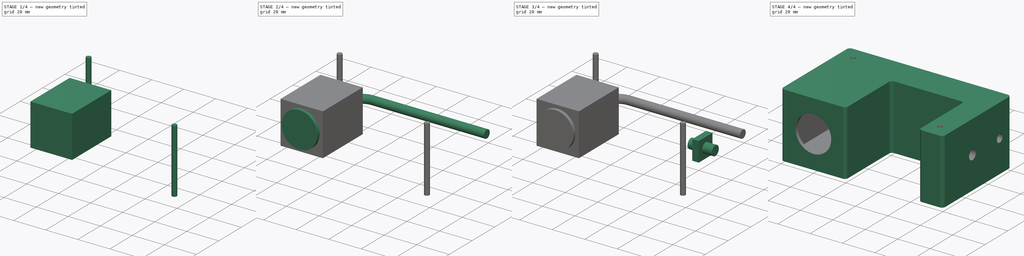
[diagram: build sequence overview — one tinted view per stage of 4, left to right]
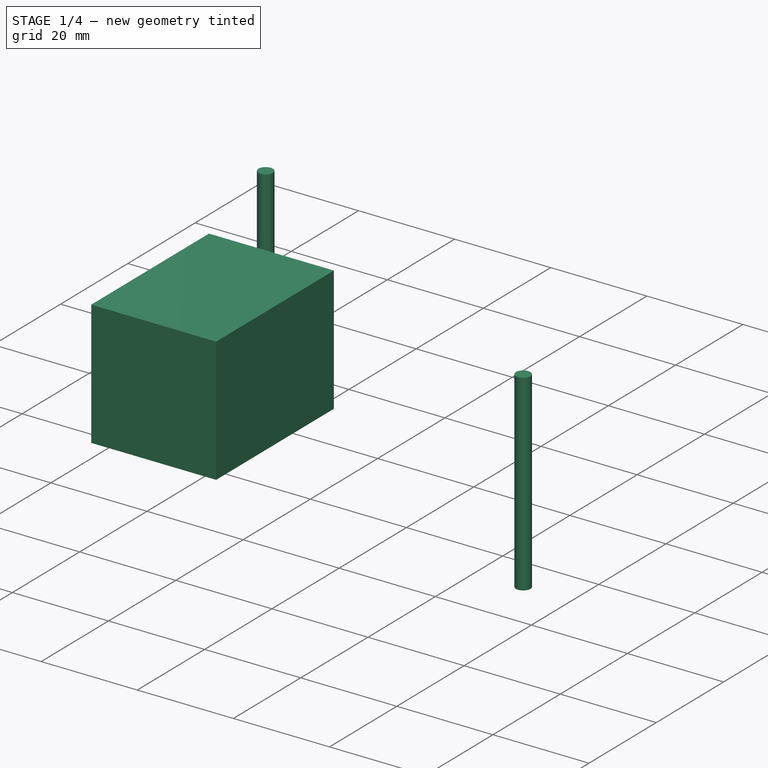
[diagram: stage 1 of 4 — iso view after this stage's code; geometry added in this stage tinted green]
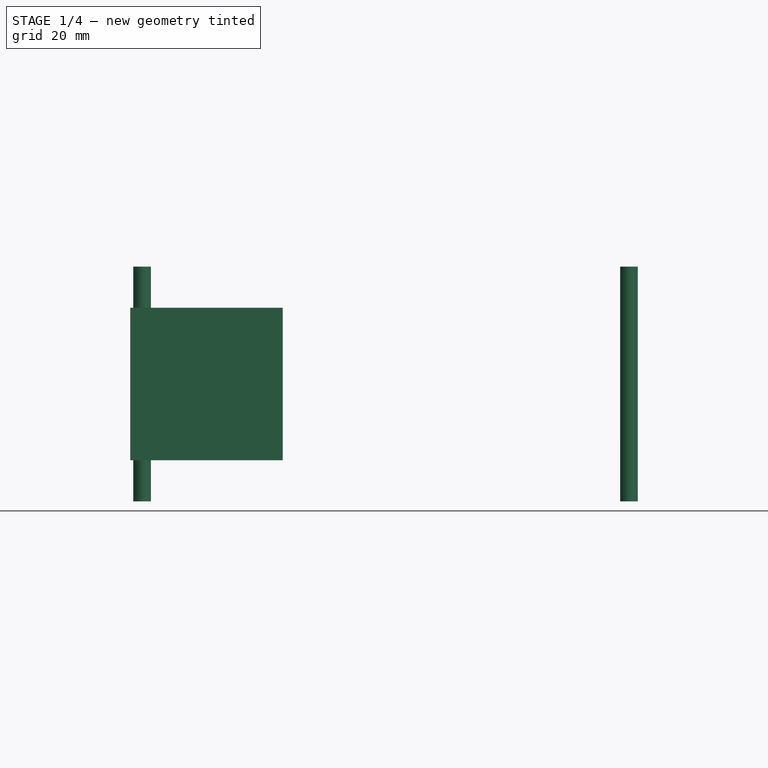
[diagram: stage 1 of 4 — front view after this stage's code; geometry added in this stage tinted green]
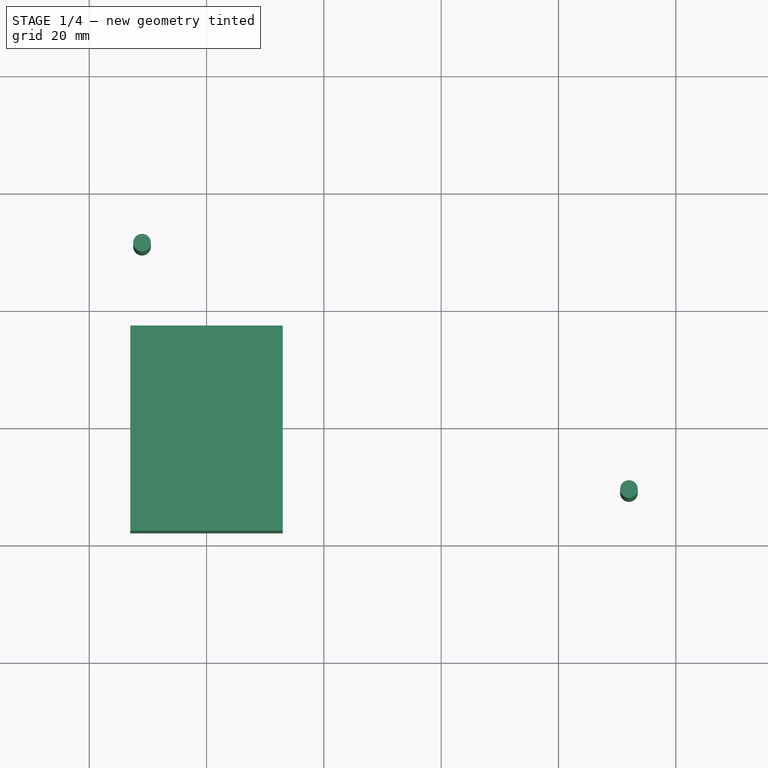
[diagram: stage 1 of 4 — top view after this stage's code; geometry added in this stage tinted green]
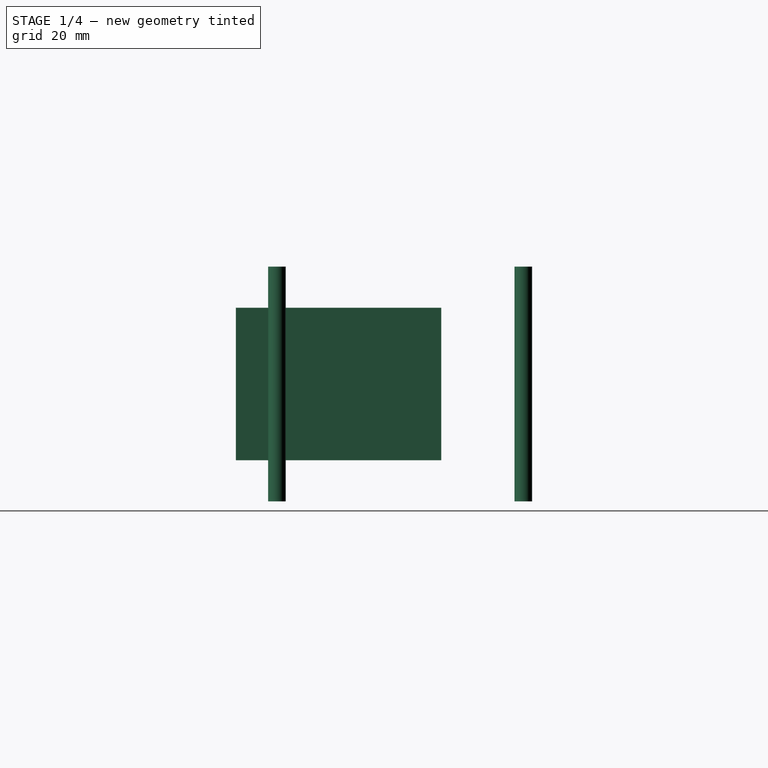
[diagram: stage 1 of 4 — right view after this stage's code; geometry added in this stage tinted green]
FCSTD DOCUMENT  (FreeCAD 0.20R29177 +426 (Git))
Label: UltrasonicSensorCase
License: All rights reserved
LicenseURL: http://en.wikipedia.org/wiki/All_rights_reserved
objects: Part::Cylinder×4, Part::MultiFuse×4, Sketcher::SketchObject×3, Part::Box×2, PartDesign::Pad×1, PartDesign::Body×1, Part::Sweep×1, Part::Cut×1, Part::Fillet×1
note: 19 computed .brp shape members not serialized (recipe doc carries the construction recipe); baked Part::Feature solids carry a one-line shape summary decoded from their .brp

FEATURE [Part::Cylinder] Cylinder001  label="screw001"
  Angle = 360
  AttacherType = Attacher::AttachEngine3D
  FirstAngle = 0
  Height = 40
  Placement = pos=(9,51,0) rot=(0,0,1;0rad)
  Radius = 1.5
  SecondAngle = 0
FEATURE [Part::Cylinder] Cylinder002  label="screw002"
  Angle = 360
  AttacherType = Attacher::AttachEngine3D
  FirstAngle = 0
  Height = 40
  Placement = pos=(92,9,0) rot=(0,0,1;0rad)
  Radius = 1.5
  SecondAngle = 0
FEATURE [Part::Box] Box001  label="sensorBody"
  AttacherType = Attacher::AttachEngine3D
  Height = 26
  Length = 26
  Placement = pos=(7,2,7) rot=(0,0,1;0rad)
  Width = 35
FEATURE [Part::MultiFuse] Fusion002  label="screws"
  Shapes = -> [Cylinder002,Cylinder001]
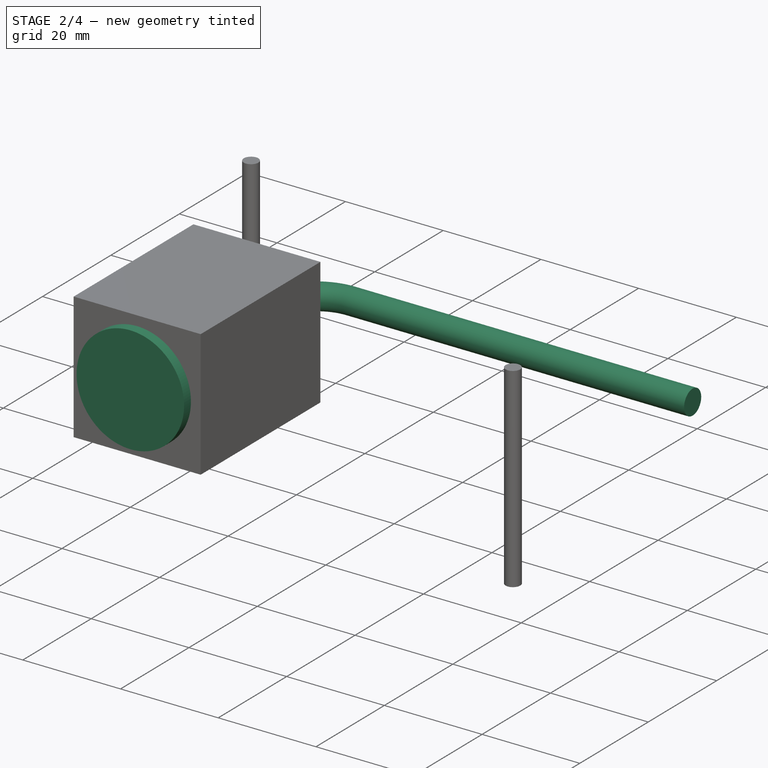
[diagram: stage 2 of 4 — iso view after this stage's code; geometry added in this stage tinted green]
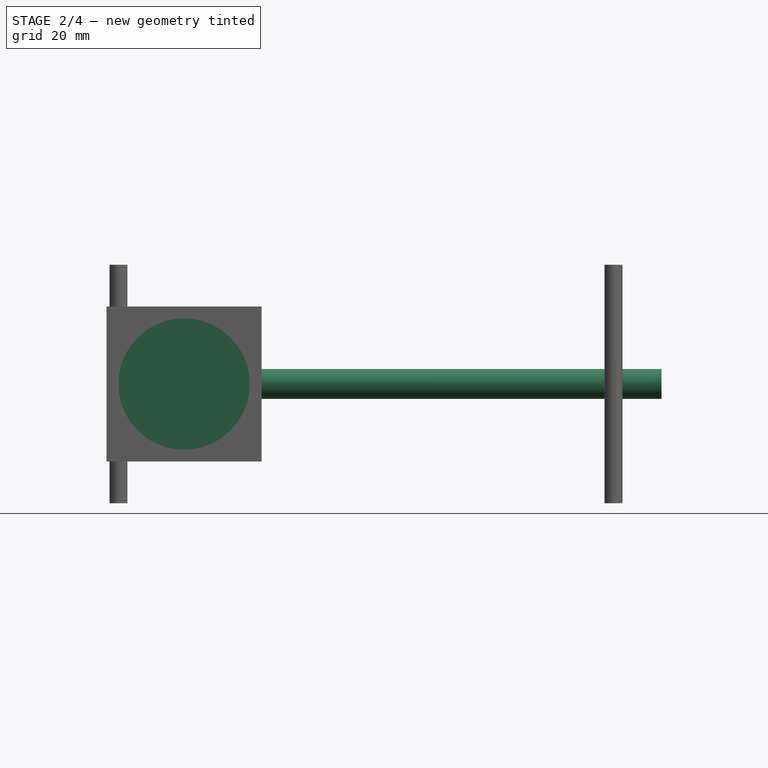
[diagram: stage 2 of 4 — front view after this stage's code; geometry added in this stage tinted green]
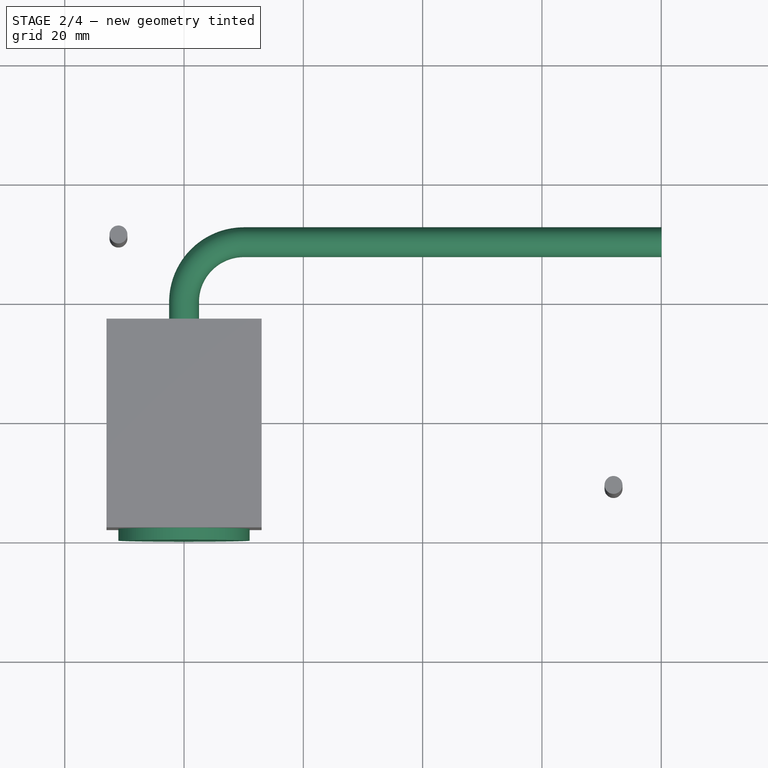
[diagram: stage 2 of 4 — top view after this stage's code; geometry added in this stage tinted green]
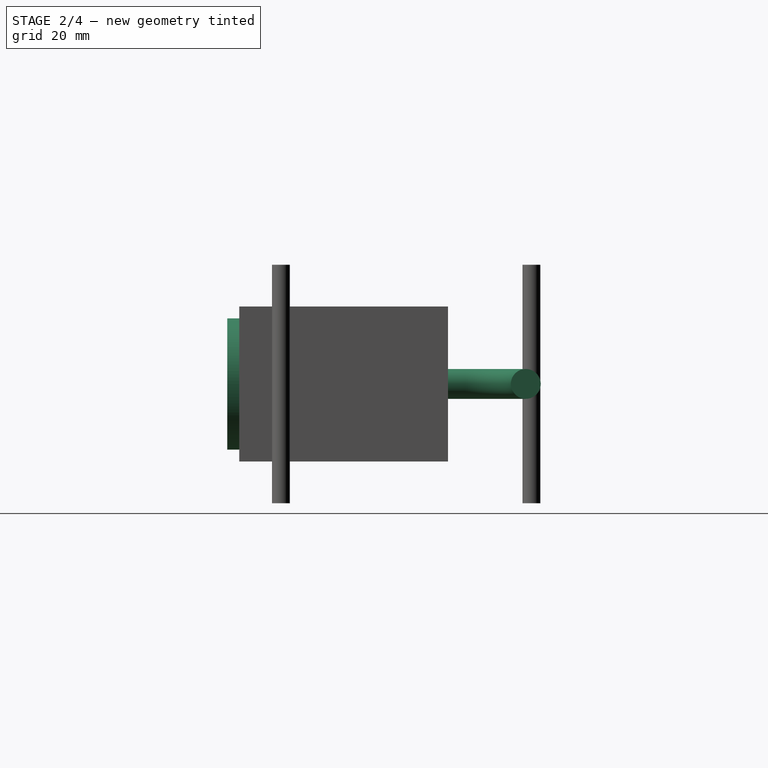
[diagram: stage 2 of 4 — right view after this stage's code; geometry added in this stage tinted green]
FEATURE [PartDesign::Body] Body  label="baseModel"
  Group = -> [Sketch,Pad]
  Origin = -> Origin
  Tip = -> Pad
FEATURE [Part::Cylinder] Cylinder  label="sensorCylinder"
  Angle = 360
  AttacherType = Attacher::AttachEngine3D
  FirstAngle = 0
  Height = 2
  Placement = pos=(20,2,20) rot=(1,0,0;1.5708rad)
  Radius = 11
  SecondAngle = 0
FEATURE [Sketcher::SketchObject] Sketch005  label="shapeCable"
  FullyConstrained = true
  MapMode = 5
  Placement = pos=(0,0,0) rot=(1,0,0;1.5708rad)
  sketch-geometry (1):
    g0: Circle CenterX=20 CenterY=0.016 CenterZ=0 NormalX=0 NormalY=0 NormalZ=1 AngleXU=0 Radius=2.5
  constraints (3):
    c: Diameter(g0) = 5
    c: DistanceX(g0) = 20
    c: DistanceY(g0) = 0.016
FEATURE [Sketcher::SketchObject] Sketch006  label="cableTrayectory"
  FullyConstrained = true
  MapMode = 5
  sketch-geometry (3):
    g0: LineSegment StartX=20.0469 StartY=-0.001316 StartZ=0 EndX=20.0469 EndY=39.9987 EndZ=0
    g1: LineSegment StartX=30.0469 StartY=49.9987 StartZ=0 EndX=100.047 EndY=49.9987 EndZ=0
    g2: ArcOfCircle CenterX=30.0469 CenterY=39.9987 CenterZ=0 NormalX=0 NormalY=0 NormalZ=1 AngleXU=0 Radius=10 StartAngle=1.5708 EndAngle=3.14159
  constraints (9):
    c: Vertical(g0)
    c: Horizontal(g1)
    c: Tangent(g0,g2) = 1.5708
    c: Tangent(g1,g2) = 1.5708
    c: Distance(g0,g2) = 10
    c: DistanceY(g0,g0) = 40
    c: DistanceX(g1,g1) = 70
    c: DistanceX(g0) = 20.0469
    c: DistanceY(g0) = -0.001316
FEATURE [Part::Sweep] Sweep  label="sensorCable"
  Frenet = false
  Placement = pos=(0,0,20) rot=(0,0,1;0rad)
  Sections = -> [Sketch005]
  Solid = true
  Spine = -> Sketch006 [Edge1,Edge2,Edge3]
  Transition = 1
FEATURE [Part::MultiFuse] Fusion001  label="sensor"
  Shapes = -> [Box001,Sweep,Cylinder]
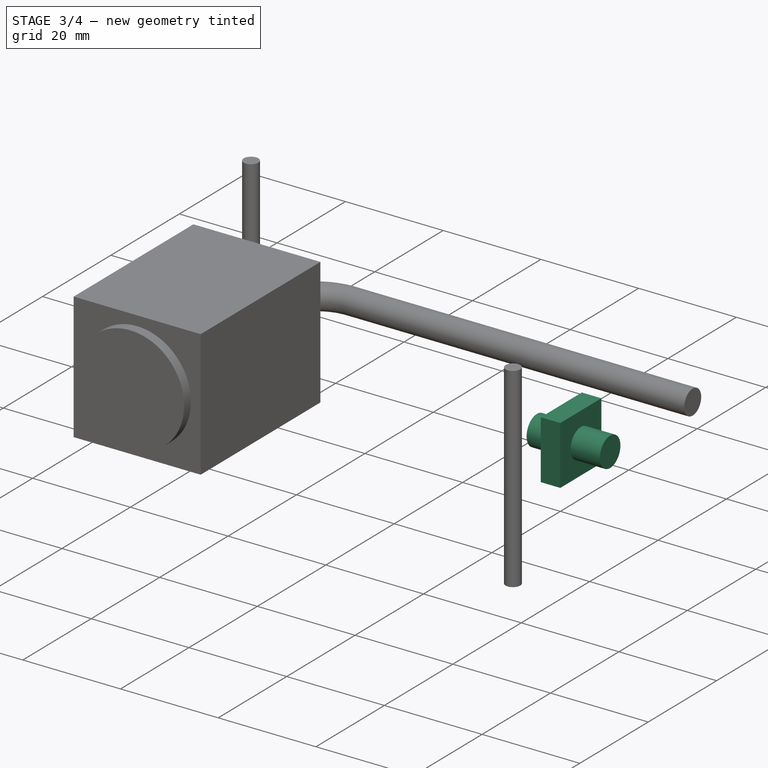
[diagram: stage 3 of 4 — iso view after this stage's code; geometry added in this stage tinted green]
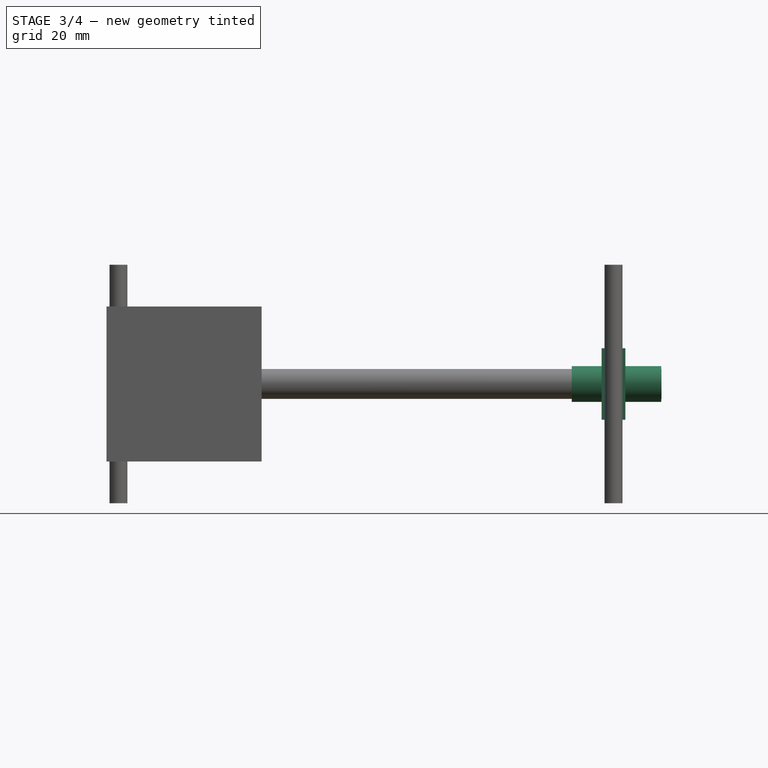
[diagram: stage 3 of 4 — front view after this stage's code; geometry added in this stage tinted green]
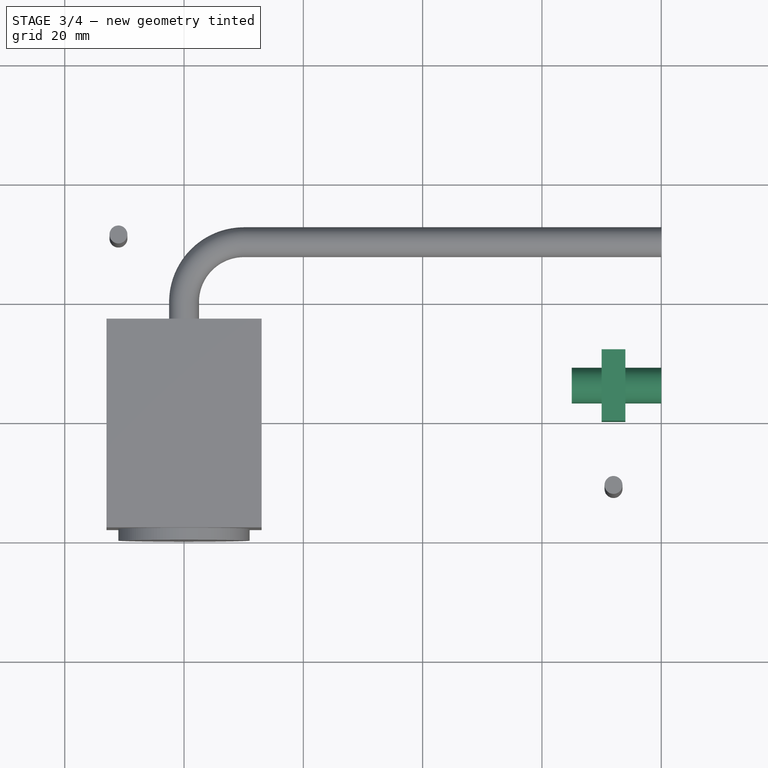
[diagram: stage 3 of 4 — top view after this stage's code; geometry added in this stage tinted green]
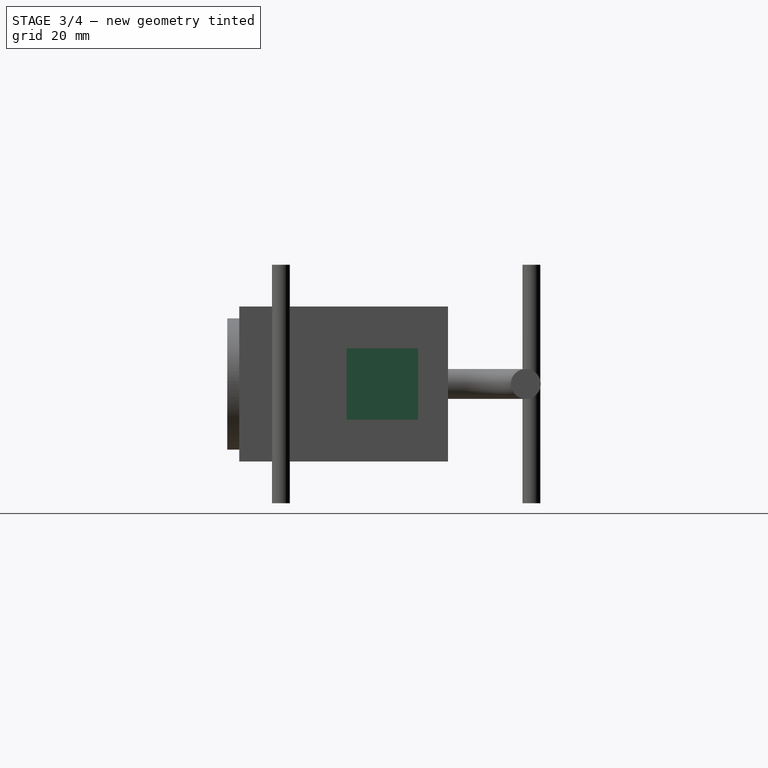
[diagram: stage 3 of 4 — right view after this stage's code; geometry added in this stage tinted green]
FEATURE [Part::Box] Box  label="nutClamp"
  AttacherType = Attacher::AttachEngine3D
  Height = 12
  Length = 4
  Placement = pos=(90,20,14) rot=(0,0,1;0rad)
  Width = 12
FEATURE [Part::Cylinder] Cylinder003  label="screwClamp"
  Angle = 360
  AttacherType = Attacher::AttachEngine3D
  FirstAngle = 0
  Height = 15
  Placement = pos=(85,26,20) rot=(0,1,0;1.5708rad)
  Radius = 3
  SecondAngle = 0
FEATURE [Part::MultiFuse] Fusion  label="clamp"
  Shapes = -> [Cylinder003,Box]
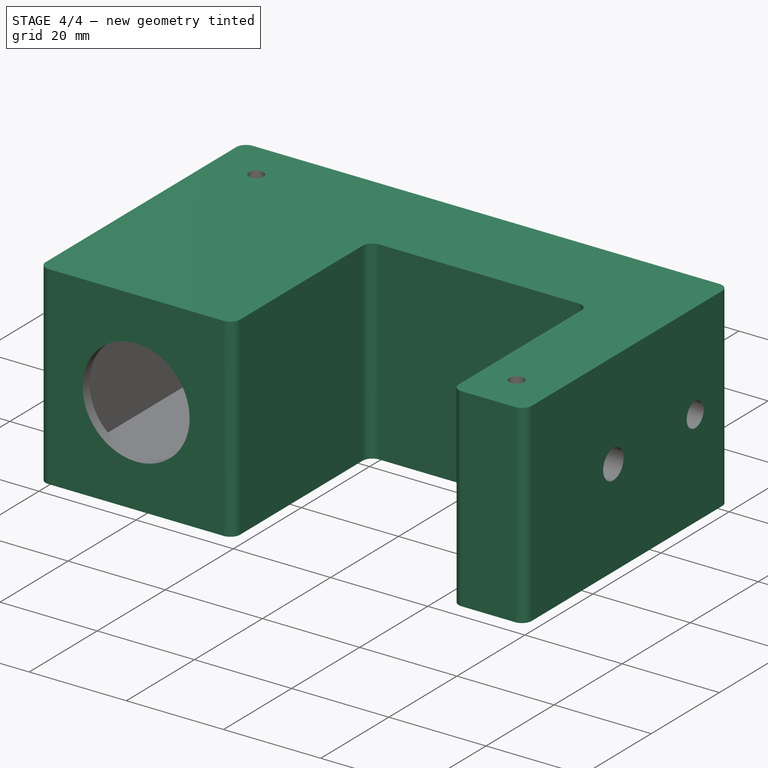
[diagram: stage 4 of 4 — iso view after this stage's code; geometry added in this stage tinted green]
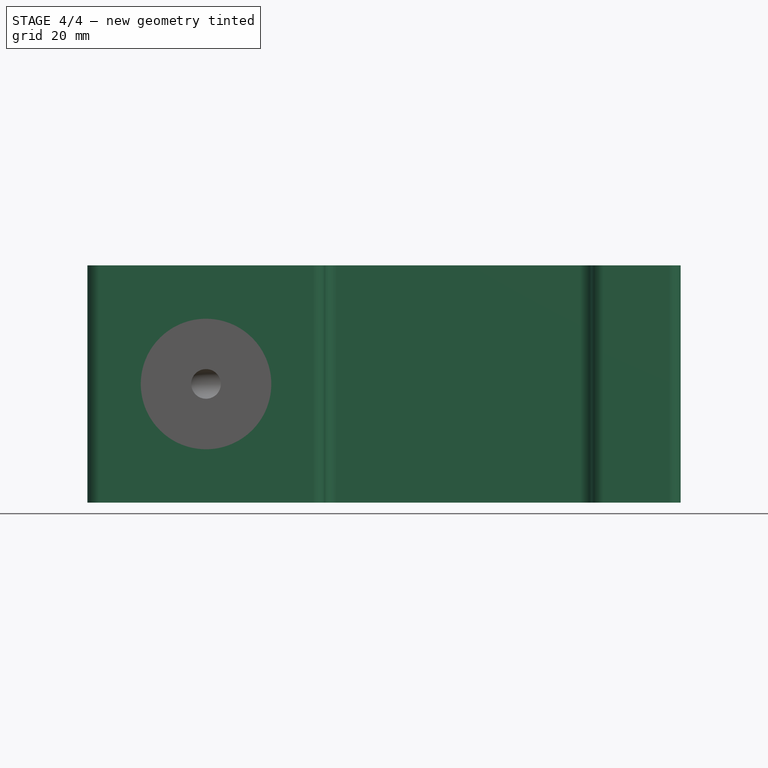
[diagram: stage 4 of 4 — front view after this stage's code; geometry added in this stage tinted green]
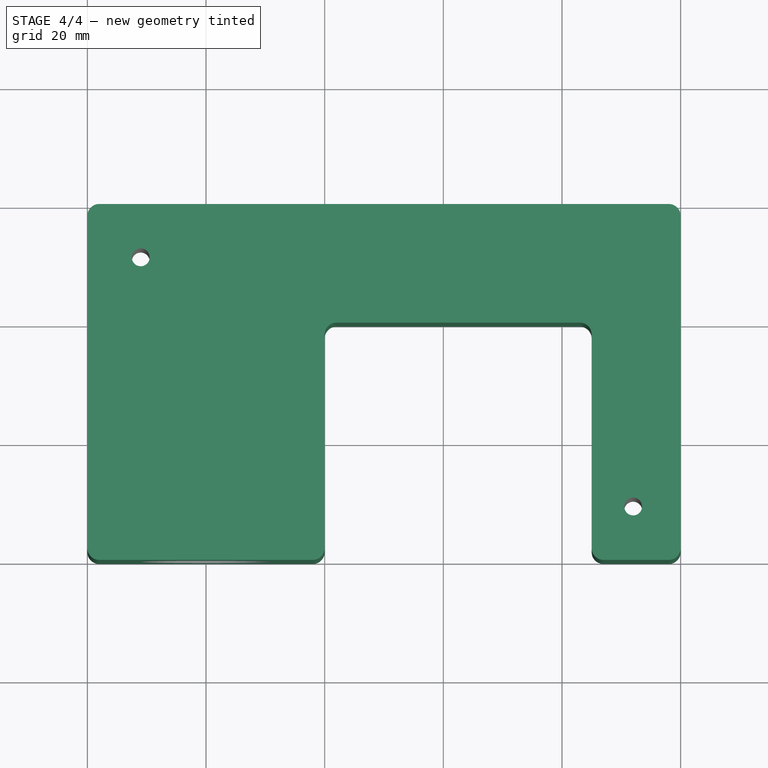
[diagram: stage 4 of 4 — top view after this stage's code; geometry added in this stage tinted green]
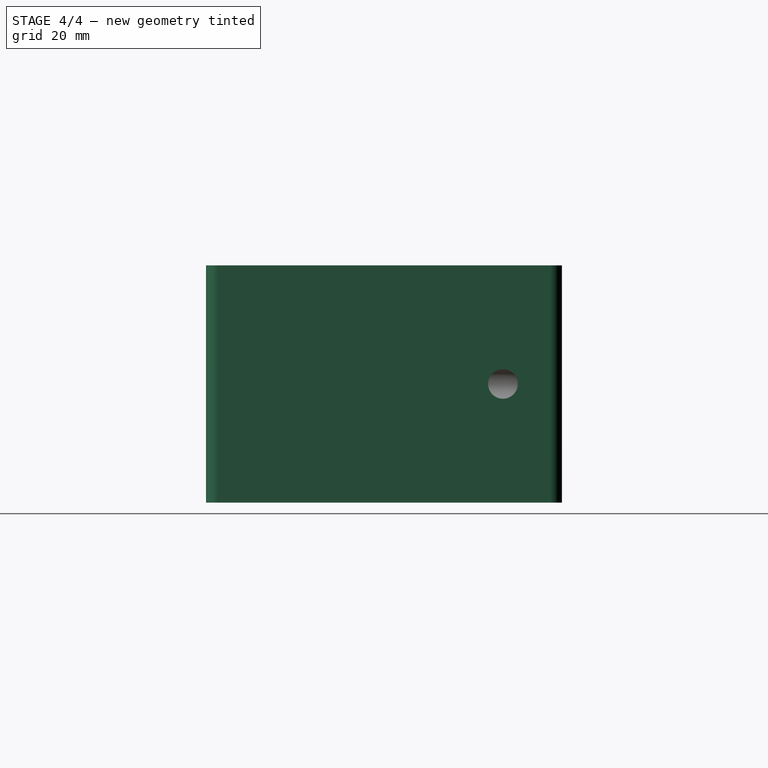
[diagram: stage 4 of 4 — right view after this stage's code; geometry added in this stage tinted green]
FEATURE [Sketcher::SketchObject] Sketch  label="sideView_sketch"
  FullyConstrained = true
  sketch-geometry (8):
    g0: LineSegment StartX=0 StartY=0 StartZ=0 EndX=0 EndY=60 EndZ=0
    g1: LineSegment StartX=0 StartY=60 StartZ=0 EndX=100 EndY=60 EndZ=0
    g2: LineSegment StartX=0 StartY=0 StartZ=0 EndX=40 EndY=0 EndZ=0
    g3: LineSegment StartX=40 StartY=0 StartZ=0 EndX=40 EndY=40 EndZ=0
    g4: LineSegment StartX=40 StartY=40 StartZ=0 EndX=85 EndY=40 EndZ=0
    g5: LineSegment StartX=100 StartY=60 StartZ=0 EndX=100 EndY=0 EndZ=0
    g6: LineSegment StartX=100 StartY=0 StartZ=0 EndX=85 EndY=0 EndZ=0
    g7: LineSegment StartX=85 StartY=0 StartZ=0 EndX=85 EndY=40 EndZ=0
  constraints (23):
    c: Vertical(g0)
    c: Coincident(g1,g0)
    c: Horizontal(g1)
    c: Coincident(g2,g0)
    c: Horizontal(g2)
    c: Coincident(g3,g2)
    c: Vertical(g3)
    c: Horizontal(g4)
    c: Coincident(g4,g3)
    c: Coincident(g5,g1)
    c: Vertical(g5)
    c: Coincident(g6,g5)
    c: Horizontal(g6)
    c: Coincident(g7,g6)
    c: Coincident(g7,g4)
    c: Vertical(g7)
    c: Coincident(g0,g-1)
    c: DistanceX(g2,g2) = 40
    c: DistanceY(g0,g0) = 60
    c: Equal(g0,g5)
    c: DistanceX(g4,g4) = 45
    c: DistanceX(g6,g6) = 15
    c: DistanceY(g3,g3) = 40
FEATURE [PartDesign::Pad] Pad  label="sideView_extruded"
  Direction = (0,0,1)
  Length = 40
  Length2 = 10
  Profile = -> Sketch
  ReferenceAxis = -> Sketch [N_Axis]
  Type = 0
FEATURE [Part::MultiFuse] Fusion003  label="drills"
  Shapes = -> [Fusion,Fusion001,Fusion002]
FEATURE [Part::Cut] Cut  label="FinalModel"
  Base = -> Body
  Tool = -> Fusion003
FEATURE [Part::Fillet] Fillet  label="UltrasonicSensorCase"
  Base = -> Cut
  Edges = 8 edges r=2: [Edge1,Edge2,Edge7,Edge9,Edge26,Edge29,Edge32,Edge33]
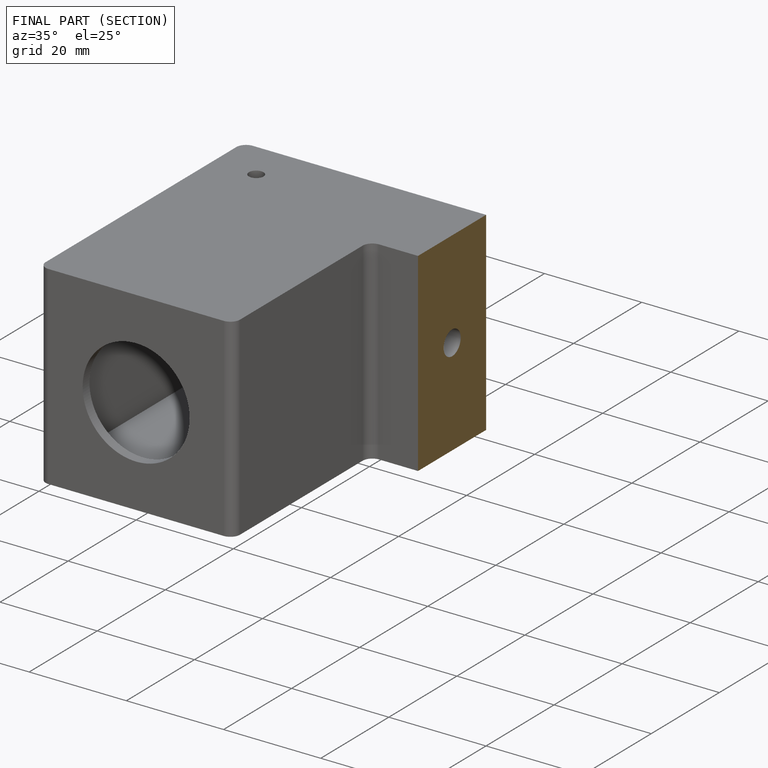
[diagram: finished part — half-section view (interior)]
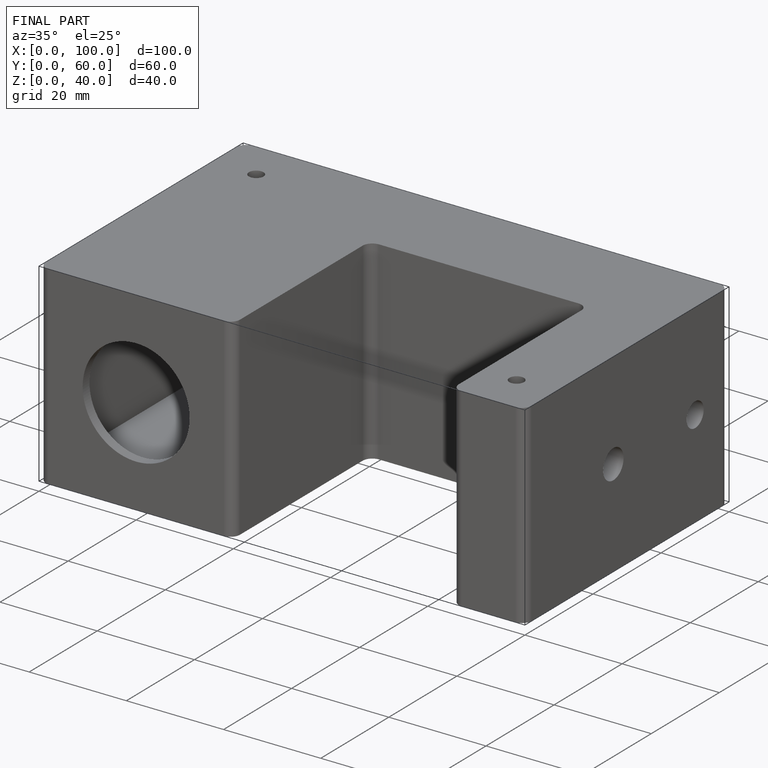
[diagram: finished part — iso view with bounding-box wireframe]
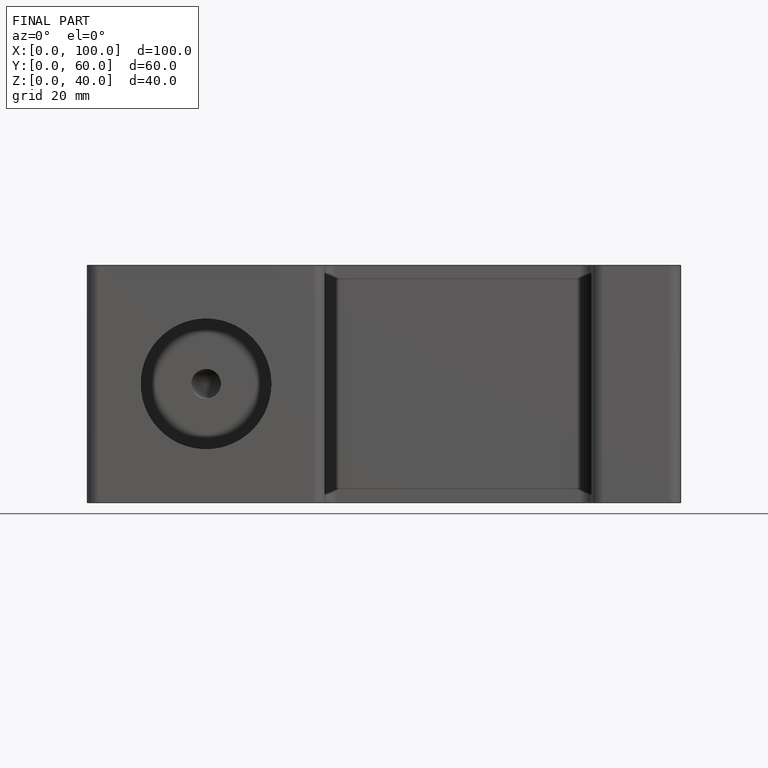
[diagram: finished part — front view with bounding-box wireframe]
